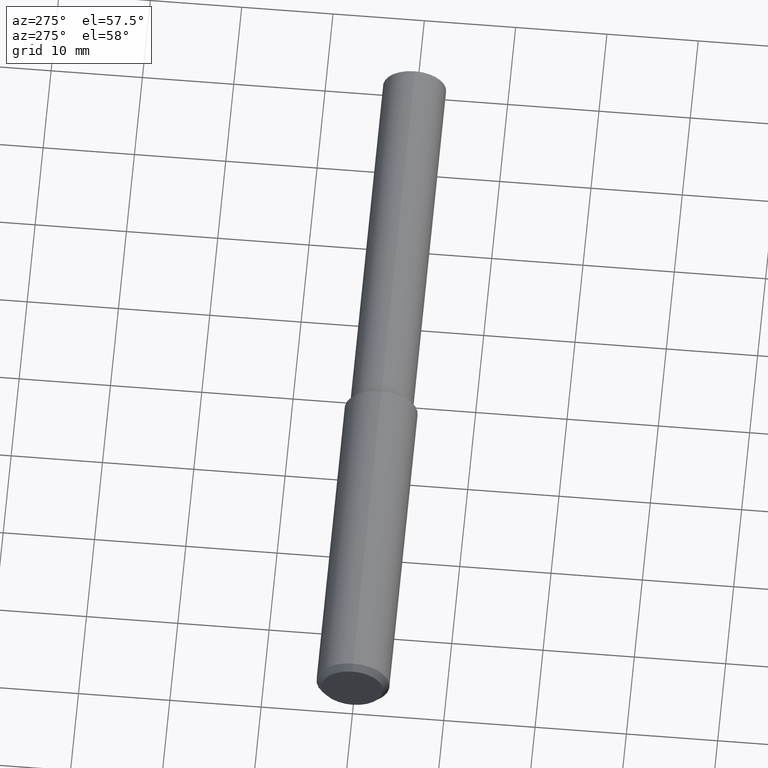
[diagram: clean part render]
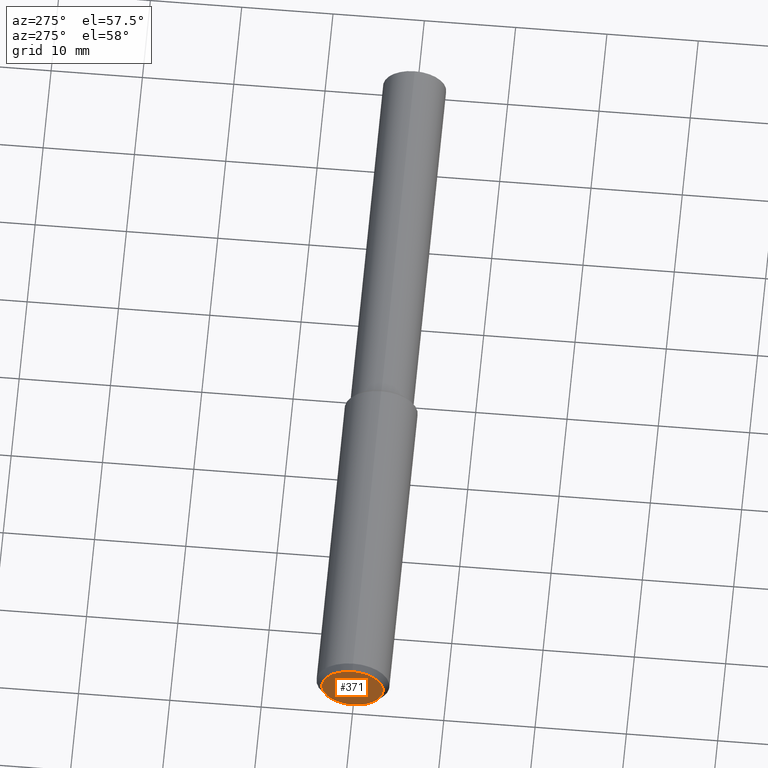
[diagram: same view with one face highlighted and labeled with its STEP entity id]
A machine part, auxiliary view. The second image highlights one B-rep face of the part: STEP entity #371.
In plain terms, the highlighted planar face has unit normal (-1, 0, 0).
Its self-contained STEP definition (entity closure, byte-faithful):
#7 = ORIENTED_EDGE ( 'NONE', *, *, #280, .F. ) ;
#22 = CARTESIAN_POINT ( 'NONE',  ( 0.000000000000000000, 0.000000000000000000, 0.000000000000000000 ) ) ;
#66 = FACE_OUTER_BOUND ( 'NONE', #101, .T. ) ;
#93 = CARTESIAN_POINT ( 'NONE',  ( 3.061616997868361794E-19, 0.1324803149606299246, 0.000000000000000000 ) ) ;
#99 = VERTEX_POINT ( 'NONE', #136 ) ;
#101 = EDGE_LOOP ( 'NONE', ( #158, #7 ) ) ;
#117 = EDGE_CURVE ( 'NONE', #178, #99, #352, .T. ) ;
#136 = CARTESIAN_POINT ( 'NONE',  ( 0.000000000000000000, 1.775496786559105798E-17, 0.1324803149606299246 ) ) ;
#158 = ORIENTED_EDGE ( 'NONE', *, *, #117, .F. ) ;
#174 = PLANE ( 'NONE',  #220 ) ;
#178 = VERTEX_POINT ( 'NONE', #276 ) ;
#197 = DIRECTION ( 'NONE',  ( 1.000000000000000000, -0.000000000000000000, -0.000000000000000000 ) ) ;
#217 = DIRECTION ( 'NONE',  ( 1.000000000000000000, -0.000000000000000000, -0.000000000000000000 ) ) ;
#218 = AXIS2_PLACEMENT_3D ( 'NONE', #22, #217, #247 ) ;
#220 = AXIS2_PLACEMENT_3D ( 'NONE', #93, #322, #295 ) ;
#247 = DIRECTION ( 'NONE',  ( 0.000000000000000000, 0.000000000000000000, -1.000000000000000000 ) ) ;
#249 = CIRCLE ( 'NONE', #265, 0.1324803149606299246 ) ;
#265 = AXIS2_PLACEMENT_3D ( 'NONE', #314, #197, #321 ) ;
#276 = CARTESIAN_POINT ( 'NONE',  ( 0.000000000000000000, 0.000000000000000000, -0.1324803149606299246 ) ) ;
#280 = EDGE_CURVE ( 'NONE', #99, #178, #249, .T. ) ;
#295 = DIRECTION ( 'NONE',  ( 0.000000000000000000, 0.000000000000000000, 1.000000000000000000 ) ) ;
#314 = CARTESIAN_POINT ( 'NONE',  ( 0.000000000000000000, 0.000000000000000000, 0.000000000000000000 ) ) ;
#321 = DIRECTION ( 'NONE',  ( 0.000000000000000000, 0.000000000000000000, -1.000000000000000000 ) ) ;
#322 = DIRECTION ( 'NONE',  ( -1.000000000000000000, 0.000000000000000000, 0.000000000000000000 ) ) ;
#352 = CIRCLE ( 'NONE', #218, 0.1324803149606299246 ) ;
#371 = ADVANCED_FACE ( 'NONE', ( #66 ), #174, .T. ) ;